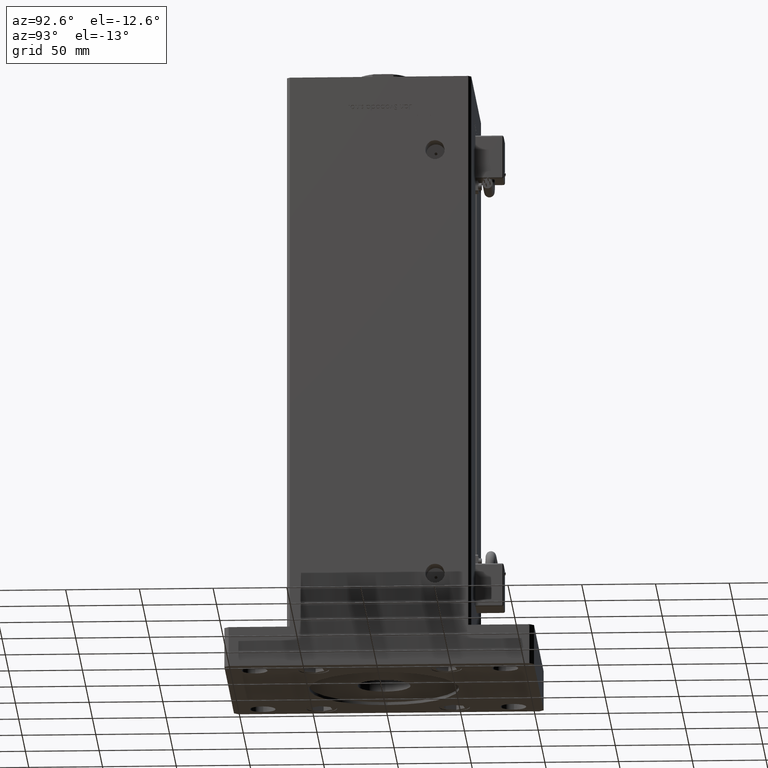
[diagram: clean part render]
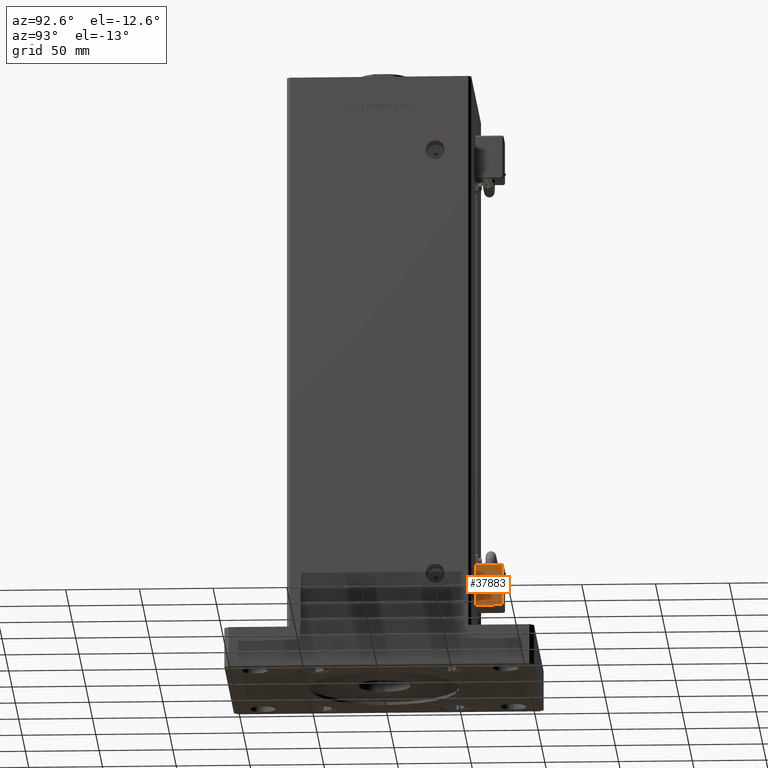
[diagram: same view with one face highlighted and labeled with its STEP entity id]
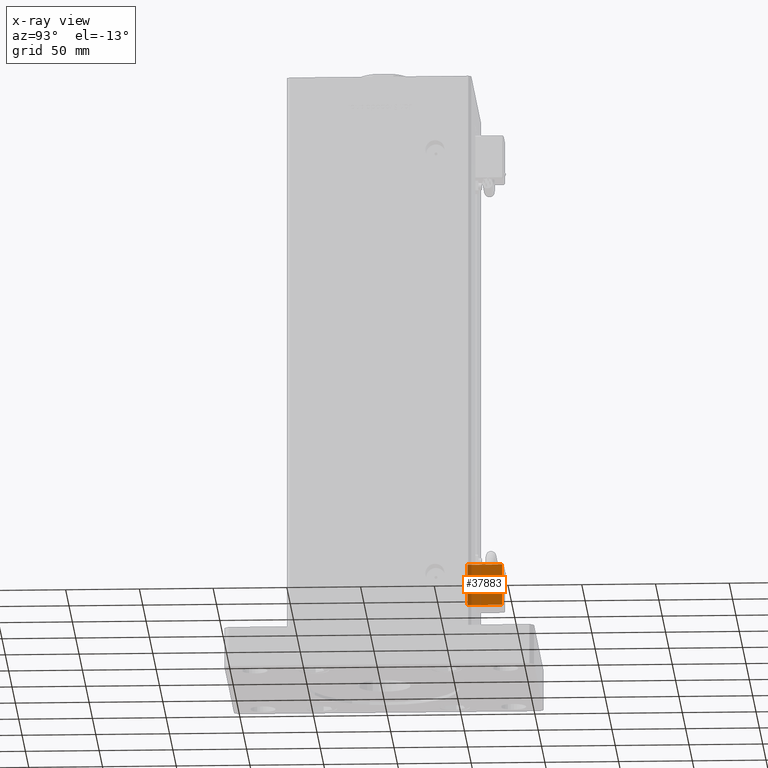
[diagram: x-ray of the same camera — body ghosted, the highlighted face saturated]
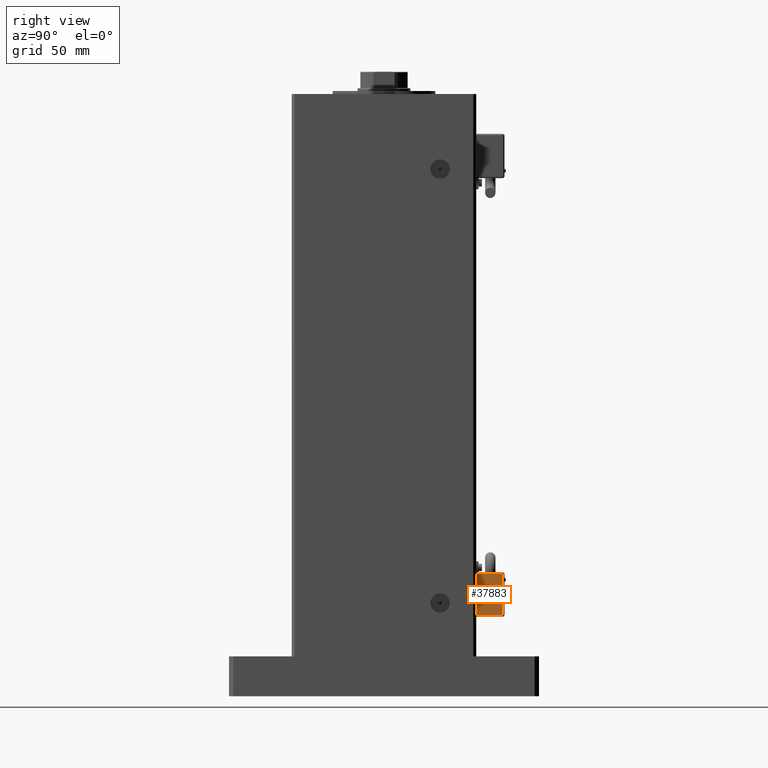
[diagram: same view with one face highlighted and labeled with its STEP entity id]
A machine part, auxiliary view. The second image highlights one B-rep face of the part: STEP entity #37883.
The next image is the same camera in x-ray: the body ghosted, the highlighted face saturated — about 13% of this face is hidden behind the body in this view.
A second angle (right view) of the same face is appended — the face is thin or edge-on in the first view.
In plain terms, the highlighted planar face has unit normal (-1, 0, 0).
Its self-contained STEP definition (entity closure, byte-faithful):
#852 = EDGE_CURVE ( 'NONE', #38285, #24333, #4255, .T. ) ;
#2700 = VERTEX_POINT ( 'NONE', #55964 ) ;
#3152 = AXIS2_PLACEMENT_3D ( 'NONE', #19044, #24210, #41681 ) ;
#3497 = VECTOR ( 'NONE', #21738, 1000.000000000000000 ) ;
#4255 = LINE ( 'NONE', #47539, #3497 ) ;
#6894 = ORIENTED_EDGE ( 'NONE', *, *, #42682, .T. ) ;
#6917 = LINE ( 'NONE', #45907, #25542 ) ;
#10635 = LINE ( 'NONE', #28083, #43611 ) ;
#15315 = PLANE ( 'NONE',  #3152 ) ;
#16565 = VERTEX_POINT ( 'NONE', #52132 ) ;
#18120 = ORIENTED_EDGE ( 'NONE', *, *, #53964, .T. ) ;
#18872 = EDGE_CURVE ( 'NONE', #2700, #16565, #53696, .T. ) ;
#19044 = CARTESIAN_POINT ( 'NONE',  ( -10.80000000000000071, 26.00000000000000000, -55.00000000000000000 ) ) ;
#19315 = DIRECTION ( 'NONE',  ( 3.108624468950000014E-32, -1.000000000000000000, -1.400000000000000069E-16 ) ) ;
#21738 = DIRECTION ( 'NONE',  ( -3.108624468950000014E-32, 1.000000000000000000, 1.400000000000000069E-16 ) ) ;
#24210 = DIRECTION ( 'NONE',  ( 1.000000000000000000, 4.930380657629929601E-32, 1.094764425253299406E-47 ) ) ;
#24333 = VERTEX_POINT ( 'NONE', #40780 ) ;
#25542 = VECTOR ( 'NONE', #37276, 1000.000000000000000 ) ;
#26730 = ORIENTED_EDGE ( 'NONE', *, *, #852, .T. ) ;
#28083 = CARTESIAN_POINT ( 'NONE',  ( -10.80000000000000071, 27.00000000000000000, -55.00000000000000000 ) ) ;
#33827 = VECTOR ( 'NONE', #19315, 1000.000000000000000 ) ;
#35230 = EDGE_LOOP ( 'NONE', ( #26730, #18120, #41503, #6894 ) ) ;
#36811 = FACE_OUTER_BOUND ( 'NONE', #35230, .T. ) ;
#37276 = DIRECTION ( 'NONE',  ( 2.220446049250000002E-16, 1.200000000000000024E-16, -1.000000000000000000 ) ) ;
#37883 = ADVANCED_FACE ( 'NONE', ( #36811 ), #15315, .F. ) ;
#38285 = VERTEX_POINT ( 'NONE', #56139 ) ;
#40780 = CARTESIAN_POINT ( 'NONE',  ( -10.80000000000000071, 50.50000000000000000, -26.00000000000000000 ) ) ;
#41295 = DIRECTION ( 'NONE',  ( -2.220446049250000002E-16, -1.200000000000000024E-16, 1.000000000000000000 ) ) ;
#41503 = ORIENTED_EDGE ( 'NONE', *, *, #18872, .T. ) ;
#41681 = DIRECTION ( 'NONE',  ( 0.000000000000000000, -2.220446049250000002E-16, 1.000000000000000000 ) ) ;
#42682 = EDGE_CURVE ( 'NONE', #16565, #38285, #10635, .T. ) ;
#43611 = VECTOR ( 'NONE', #41295, 1000.000000000000000 ) ;
#45907 = CARTESIAN_POINT ( 'NONE',  ( -10.80000000000000071, 50.50000000000000000, -55.00000000000000000 ) ) ;
#47539 = CARTESIAN_POINT ( 'NONE',  ( -10.80000000000000071, 26.00000000000000000, -26.00000000000000000 ) ) ;
#49405 = CARTESIAN_POINT ( 'NONE',  ( -10.80000000000000071, 26.00000000000000000, -54.00000000000000000 ) ) ;
#52132 = CARTESIAN_POINT ( 'NONE',  ( -10.80000000000000071, 27.00000000000000000, -54.00000000000000000 ) ) ;
#53696 = LINE ( 'NONE', #49405, #33827 ) ;
#53964 = EDGE_CURVE ( 'NONE', #24333, #2700, #6917, .T. ) ;
#55964 = CARTESIAN_POINT ( 'NONE',  ( -10.80000000000000071, 50.50000000000000000, -54.00000000000000000 ) ) ;
#56139 = CARTESIAN_POINT ( 'NONE',  ( -10.80000000000000071, 27.00000000000000000, -26.00000000000000000 ) ) ;